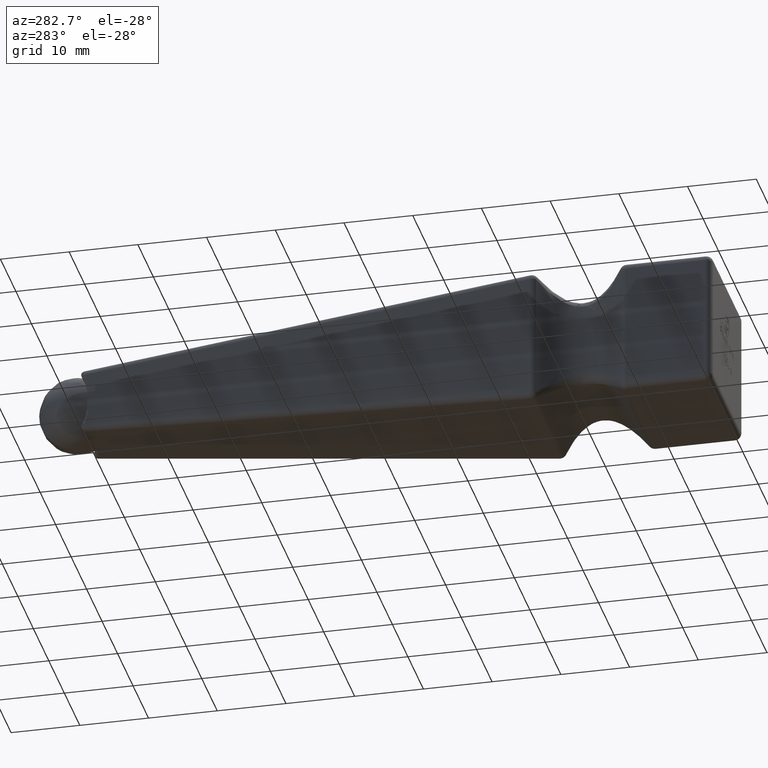
[diagram: clean part render]
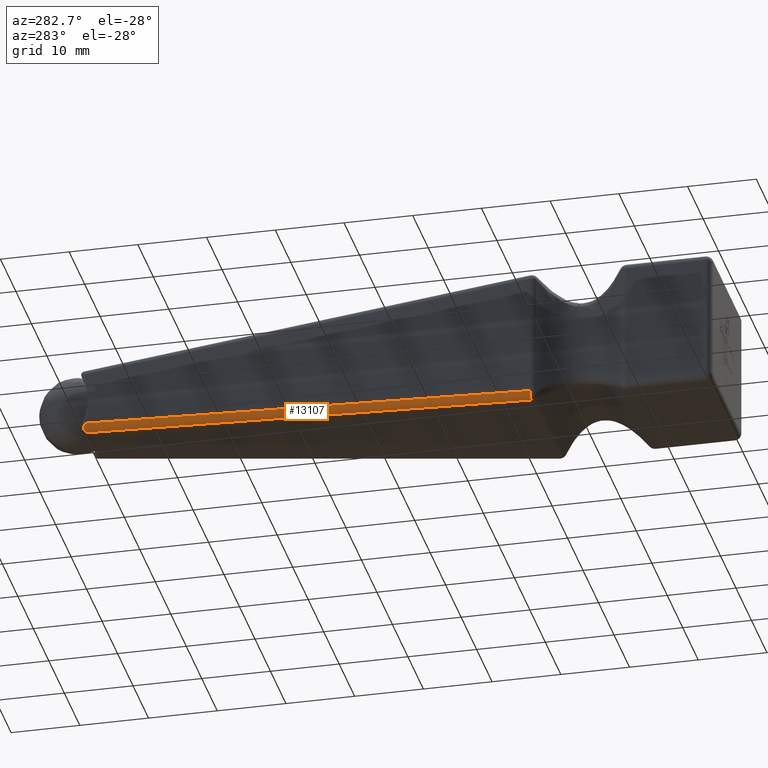
[diagram: same view with one face highlighted and labeled with its STEP entity id]
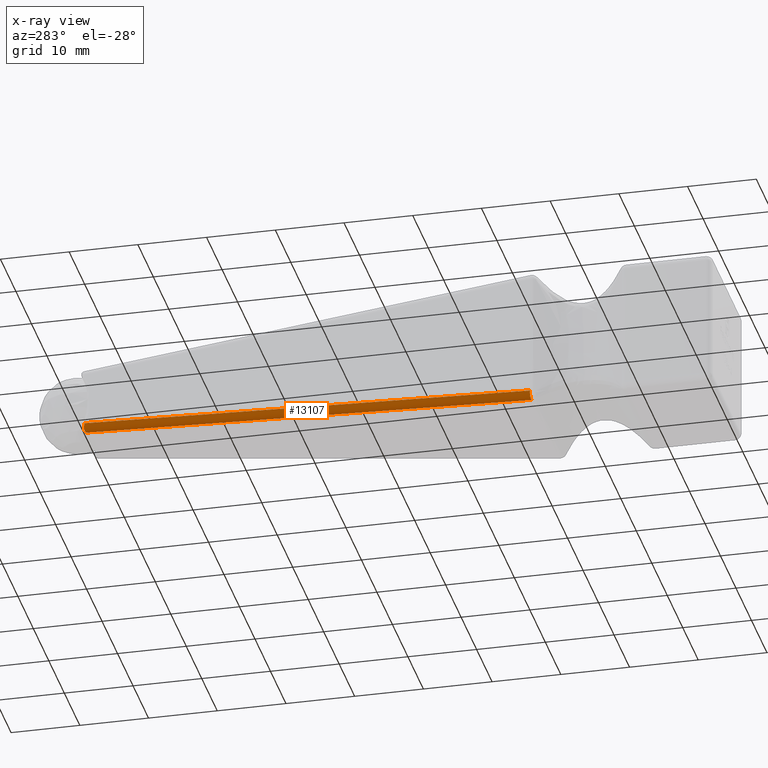
[diagram: x-ray of the same camera — body ghosted, the highlighted face saturated]
A machine part, auxiliary view. The second image highlights one B-rep face of the part: STEP entity #13107.
The next image is the same camera in x-ray: the body ghosted, the highlighted face saturated — about 0% of this face is hidden behind the body in this view.
In plain terms, the highlighted cylindrical surface (edge-blend (fillet) strip) has radius 1 mm, axis along (-0.0766, -0.9941, -0.0766).
Its self-contained STEP definition (entity closure, byte-faithful):
#52 = VECTOR ( 'NONE', #14187, 1000.000000000000227 ) ;
#759 = ORIENTED_EDGE ( 'NONE', *, *, #5423, .T. ) ;
#915 = CARTESIAN_POINT ( 'NONE',  ( -10.00584776321183611, -24.07590846476900737, -9.008801972960728932 ) ) ;
#1220 = CIRCLE ( 'NONE', #1943, 0.9999999999999998890 ) ;
#1295 = CYLINDRICAL_SURFACE ( 'NONE', #3942, 1.000000000000000888 ) ;
#1318 = VERTEX_POINT ( 'NONE', #4292 ) ;
#1601 = CARTESIAN_POINT ( 'NONE',  ( -4.485485750076995792, 42.59289634447913642, -4.670931224492459677 ) ) ;
#1642 = DIRECTION ( 'NONE',  ( -1.734723475976807292E-15, 0.07680945347119523536, -0.9970457902511079551 ) ) ;
#1943 = AXIS2_PLACEMENT_3D ( 'NONE', #10187, #13792, #1642 ) ;
#2205 = CARTESIAN_POINT ( 'NONE',  ( -4.746396866730041353, 42.56368558451463002, -4.377983252973029593 ) ) ;
#2333 = EDGE_CURVE ( 'NONE', #8377, #1318, #5134, .T. ) ;
#2645 = DIRECTION ( 'NONE',  ( 0.000000000000000000, 0.07680945347119640110, -0.9970457902511078441 ) ) ;
#2845 = CARTESIAN_POINT ( 'NONE',  ( -4.140751781664163467, 42.49861995960620931, -4.851513501820109653 ) ) ;
#2940 = DIRECTION ( 'NONE',  ( 0.07658387504978757254, 0.9941176088193574012, 0.07658387504978757254 ) ) ;
#3339 = VERTEX_POINT ( 'NONE', #10854 ) ;
#3395 = LINE ( 'NONE', #10439, #9472 ) ;
#3942 = AXIS2_PLACEMENT_3D ( 'NONE', #8603, #5015, #2645 ) ;
#4055 = CARTESIAN_POINT ( 'NONE',  ( -4.015067985961224828, 42.46389147302078726, -4.879818730967290463 ) ) ;
#4162 = ORIENTED_EDGE ( 'NONE', *, *, #8985, .F. ) ;
#4292 = CARTESIAN_POINT ( 'NONE',  ( -4.576366706184296085, 42.61680407991887165, -4.576366706184032296 ) ) ;
#4463 = ORIENTED_EDGE ( 'NONE', *, *, #2333, .T. ) ;
#5015 = DIRECTION ( 'NONE',  ( -0.07658387504978757254, -0.9941176088193575122, -0.07658387504978757254 ) ) ;
#5134 = B_SPLINE_CURVE_WITH_KNOTS ( 'NONE', 3,
 ( #8197, #15319, #10722, #2205, #8249, #9342 ),
 .UNSPECIFIED., .F., .F.,
 ( 4, 2, 4 ),
 ( 5.704181241051244662E-18, 0.0003967614519231639622, 0.0007935229038463222865 ),
 .UNSPECIFIED. ) ;
#5402 = ORIENTED_EDGE ( 'NONE', *, *, #9011, .T. ) ;
#5423 = EDGE_CURVE ( 'NONE', #15432, #3339, #1220, .T. ) ;
#7148 = EDGE_LOOP ( 'NONE', ( #4162, #759, #14096, #4463, #5402 ) ) ;
#7227 = CARTESIAN_POINT ( 'NONE',  ( -8.966476940020077890, -23.52649697948172047, -9.963522730271186845 ) ) ;
#7558 = EDGE_CURVE ( 'NONE', #8377, #3339, #7740, .T. ) ;
#7740 = LINE ( 'NONE', #915, #52 ) ;
#8197 = CARTESIAN_POINT ( 'NONE',  ( -4.882580872235002367, 42.42803675464178070, -3.885535081983896966 ) ) ;
#8203 = B_SPLINE_CURVE_WITH_KNOTS ( 'NONE', 3,
 ( #12607, #1601, #14875, #2845, #4055, #8823 ),
 .UNSPECIFIED., .F., .F.,
 ( 4, 2, 4 ),
 ( 0.0007957379933529085299, 0.001198661042468248490, 0.001601584091583588450 ),
 .UNSPECIFIED. ) ;
#8249 = CARTESIAN_POINT ( 'NONE',  ( -4.671700498464324447, 42.59270185717120683, -4.484746441556972663 ) ) ;
#8377 = VERTEX_POINT ( 'NONE', #14874 ) ;
#8603 = CARTESIAN_POINT ( 'NONE',  ( -7.122950570566533024, 0.3270839397613621302, -7.122950570566533912 ) ) ;
#8823 = CARTESIAN_POINT ( 'NONE',  ( -3.885535081983896966, 42.42803675464175228, -4.882580872235005920 ) ) ;
#8985 = EDGE_CURVE ( 'NONE', #15432, #15032, #3395, .T. ) ;
#9011 = EDGE_CURVE ( 'NONE', #1318, #15032, #8203, .T. ) ;
#9342 = CARTESIAN_POINT ( 'NONE',  ( -4.576366706184296085, 42.61680407991887165, -4.576366706184032296 ) ) ;
#9472 = VECTOR ( 'NONE', #2940, 1000.000000000000227 ) ;
#10187 = CARTESIAN_POINT ( 'NONE',  ( -8.966476940020069009, -23.60330643295281661, -8.966476940020070785 ) ) ;
#10439 = CARTESIAN_POINT ( 'NONE',  ( -3.808801972960719873, 43.42409153523107079, -4.805847763211827939 ) ) ;
#10722 = CARTESIAN_POINT ( 'NONE',  ( -4.851530760724418023, 42.49859930511198058, -4.140677080349712824 ) ) ;
#10854 = CARTESIAN_POINT ( 'NONE',  ( -9.963522730271177963, -23.52649697948162100, -8.966476940020070785 ) ) ;
#12607 = CARTESIAN_POINT ( 'NONE',  ( -4.576366706184296085, 42.61680407991887165, -4.576366706184032296 ) ) ;
#13107 = ADVANCED_FACE ( 'NONE', ( #14906 ), #1295, .T. ) ;
#13792 = DIRECTION ( 'NONE',  ( 0.07658387504978757254, 0.9941176088193575122, 0.07658387504978757254 ) ) ;
#14096 = ORIENTED_EDGE ( 'NONE', *, *, #7558, .F. ) ;
#14187 = DIRECTION ( 'NONE',  ( -0.07658387504978757254, -0.9941176088193574012, -0.07658387504978755866 ) ) ;
#14874 = CARTESIAN_POINT ( 'NONE',  ( -4.882580872235002367, 42.42803675464178070, -3.885535081983896966 ) ) ;
#14875 = CARTESIAN_POINT ( 'NONE',  ( -4.378110239251609137, 42.56372024700350210, -4.746324758399151023 ) ) ;
#14906 = FACE_OUTER_BOUND ( 'NONE', #7148, .T. ) ;
#15032 = VERTEX_POINT ( 'NONE', #15495 ) ;
#15319 = CARTESIAN_POINT ( 'NONE',  ( -4.879819513289086252, 42.46388131788207687, -4.015031298332202958 ) ) ;
#15432 = VERTEX_POINT ( 'NONE', #7227 ) ;
#15495 = CARTESIAN_POINT ( 'NONE',  ( -3.885535081983896966, 42.42803675464175228, -4.882580872235005920 ) ) ;